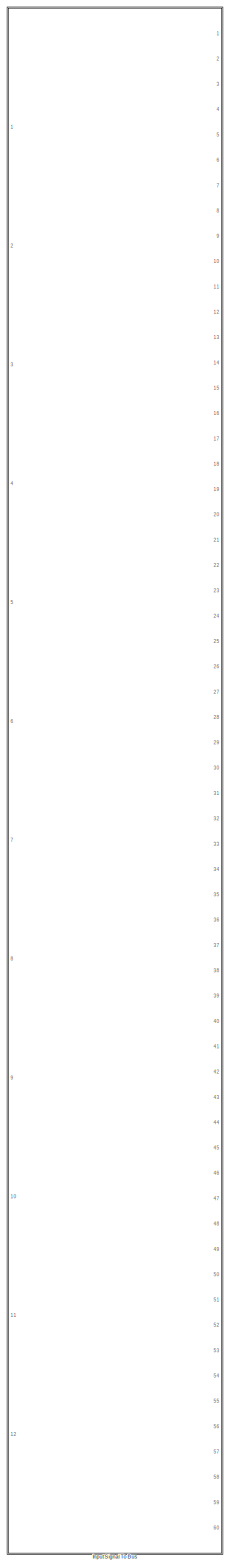
[diagram: root canvas - part 1/2, right side, full height]
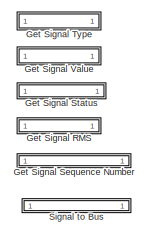
[diagram: root canvas - part 2/2, top left region]
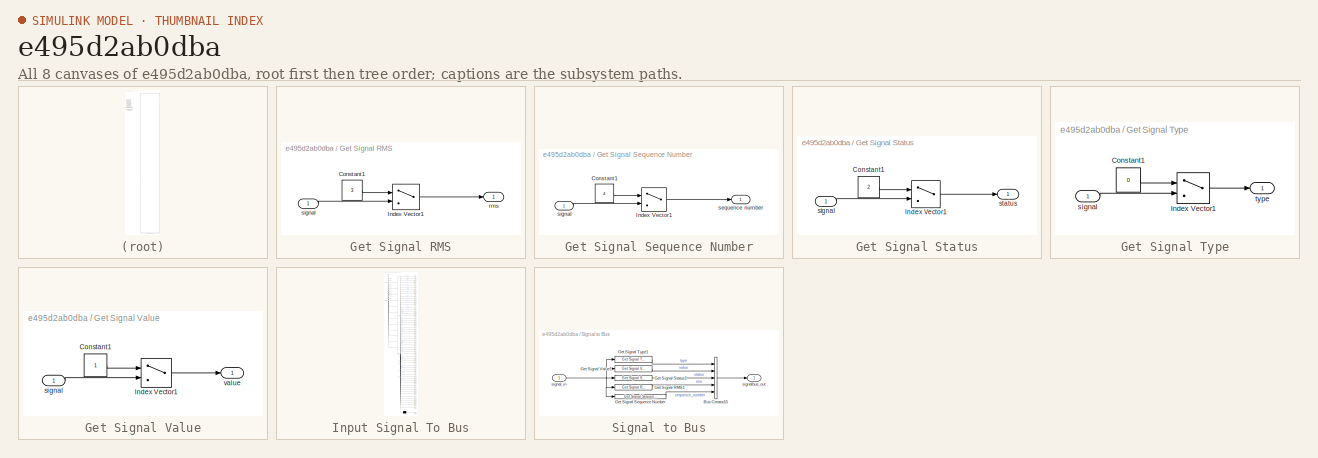
[diagram: thumbnail index - all 8 canvases of the model, root first then tree order]
MODEL slx_e495d2ab0dba
KIND library
CONFIG AbsTol = auto
CONFIG EnableMultiTasking = off
CONFIG FixedStep = auto
CONFIG MaxStep = auto
CONFIG MinStep = auto
CONFIG RelTol = 1e-3
CONFIG SampleTimeConstraint = Unconstrained
CONFIG Solver = VariableStepAuto
CONFIG SolverName = VariableStepAuto
CONFIG StartTime = 0.0
CONFIG StopTime = 10.0
BLOCK [SubSystem] Get Signal RMS
  Ports = [1, 1]
  RequestExecContextInheritance = off
  TreatAsAtomicUnit = on
BLOCK [Constant] Get Signal RMS/Constant1
  Value = 3
BLOCK [MultiPortSwitch] Get Signal RMS/Index Vector1
  DataPortOrder = Zero-based contiguous
  InputSameDT = off
  Inputs = 1
  Ports = [2, 1]
  SaturateOnIntegerOverflow = off
  zeroidx = on
BLOCK [Outport] Get Signal RMS/rms
  IconDisplay = Port number
BLOCK [Inport] Get Signal RMS/signal
  IconDisplay = Port number
BLOCK [SubSystem] Get Signal Sequence Number
  Ports = [1, 1]
  RequestExecContextInheritance = off
  TreatAsAtomicUnit = on
BLOCK [Constant] Get Signal Sequence Number/Constant1
  Value = 4
BLOCK [MultiPortSwitch] Get Signal Sequence Number/Index Vector1
  DataPortOrder = Zero-based contiguous
  InputSameDT = off
  Inputs = 1
  Ports = [2, 1]
  SaturateOnIntegerOverflow = off
  zeroidx = on
BLOCK [Outport] Get Signal Sequence Number/sequence number
  IconDisplay = Port number
BLOCK [Inport] Get Signal Sequence Number/signal
  IconDisplay = Port number
BLOCK [SubSystem] Get Signal Status
  Ports = [1, 1]
  RequestExecContextInheritance = off
  TreatAsAtomicUnit = on
BLOCK [Constant] Get Signal Status/Constant1
  Value = 2
BLOCK [MultiPortSwitch] Get Signal Status/Index Vector1
  DataPortOrder = Zero-based contiguous
  InputSameDT = off
  Inputs = 1
  Ports = [2, 1]
  SaturateOnIntegerOverflow = off
  zeroidx = on
BLOCK [Inport] Get Signal Status/signal
  IconDisplay = Port number
BLOCK [Outport] Get Signal Status/status
  IconDisplay = Port number
BLOCK [SubSystem] Get Signal Type
  Ports = [1, 1]
  RequestExecContextInheritance = off
  TreatAsAtomicUnit = on
BLOCK [Constant] Get Signal Type/Constant1
  Value = 0
BLOCK [MultiPortSwitch] Get Signal Type/Index Vector1
  DataPortOrder = Zero-based contiguous
  InputSameDT = off
  Inputs = 1
  Ports = [2, 1]
  SaturateOnIntegerOverflow = off
  zeroidx = on
BLOCK [Inport] Get Signal Type/signal
  IconDisplay = Port number
BLOCK [Outport] Get Signal Type/type
  IconDisplay = Port number
BLOCK [SubSystem] Get Signal Value
  Ports = [1, 1]
  RequestExecContextInheritance = off
  TreatAsAtomicUnit = on
BLOCK [Constant] Get Signal Value/Constant1
BLOCK [MultiPortSwitch] Get Signal Value/Index Vector1
  DataPortOrder = Zero-based contiguous
  InputSameDT = off
  Inputs = 1
  Ports = [2, 1]
  SaturateOnIntegerOverflow = off
  zeroidx = on
BLOCK [Inport] Get Signal Value/signal
  IconDisplay = Port number
BLOCK [Outport] Get Signal Value/value
  IconDisplay = Port number
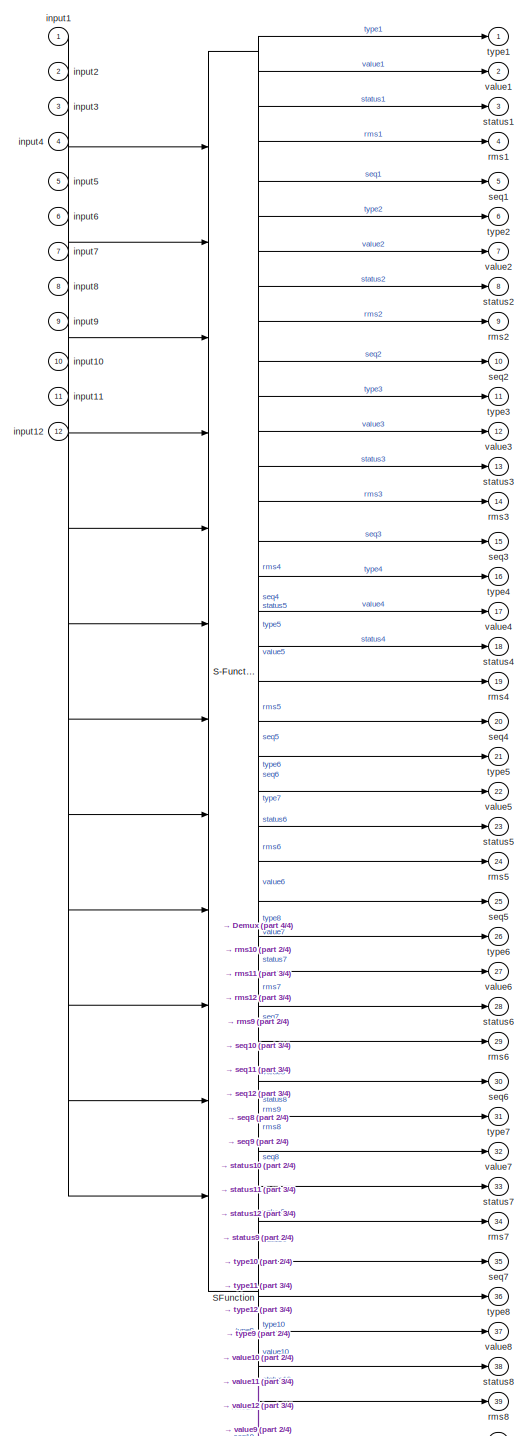
[diagram: Input Signal To Bus - part 1/4, full width, top band]
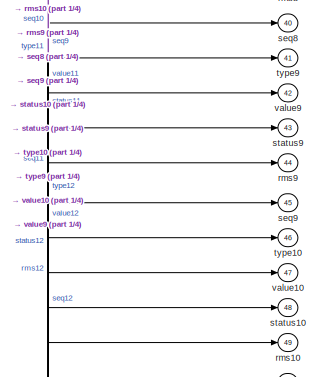
[diagram: Input Signal To Bus - part 2/4, bottom right region]
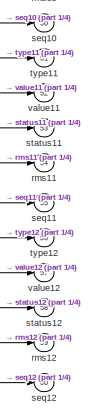
[diagram: Input Signal To Bus - part 3/4, bottom right region]
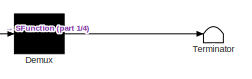
[diagram: Input Signal To Bus - part 4/4, bottom right region]
BLOCK [SubSystem] Input Signal To Bus
  ErrorFcn = Stateflow.Translate.translate
  PermitHierarchicalResolution = ExplicitOnly
  Ports = [12, 60]
  RequestExecContextInheritance = off
  SFBlockType = MATLAB Function
  TreatAsAtomicUnit = on
BLOCK [Demux] Input Signal To Bus/ Demux 
  Outputs = 1
  Ports = [1, 1]
BLOCK [S-Function] Input Signal To Bus/ SFunction 
  EnableBusSupport = off
  FunctionName = sf_sfun
  PortCounts = [12 61]
  Ports = [12, 61]
  SFcnIsStateOwnerBlock = off
  SFunctionDeploymentMode = off
  Tag = Stateflow S-Function 2
BLOCK [Terminator] Input Signal To Bus/ Terminator 
BLOCK [Inport] Input Signal To Bus/input1
  IconDisplay = Port number
BLOCK [Inport] Input Signal To Bus/input10
  IconDisplay = Port number
  Port = 10
BLOCK [Inport] Input Signal To Bus/input11
  IconDisplay = Port number
  Port = 11
BLOCK [Inport] Input Signal To Bus/input12
  IconDisplay = Port number
  Port = 12
BLOCK [Inport] Input Signal To Bus/input2
  IconDisplay = Port number
  Port = 2
BLOCK [Inport] Input Signal To Bus/input3
  IconDisplay = Port number
  Port = 3
BLOCK [Inport] Input Signal To Bus/input4
  IconDisplay = Port number
  Port = 4
BLOCK [Inport] Input Signal To Bus/input5
  IconDisplay = Port number
  Port = 5
BLOCK [Inport] Input Signal To Bus/input6
  IconDisplay = Port number
  Port = 6
BLOCK [Inport] Input Signal To Bus/input7
  IconDisplay = Port number
  Port = 7
BLOCK [Inport] Input Signal To Bus/input8
  IconDisplay = Port number
  Port = 8
BLOCK [Inport] Input Signal To Bus/input9
  IconDisplay = Port number
  Port = 9
BLOCK [Outport] Input Signal To Bus/rms1
  IconDisplay = Port number
  Port = 4
BLOCK [Outport] Input Signal To Bus/rms10
  IconDisplay = Port number
  Port = 49
BLOCK [Outport] Input Signal To Bus/rms11
  IconDisplay = Port number
  Port = 54
BLOCK [Outport] Input Signal To Bus/rms12
  IconDisplay = Port number
  Port = 59
BLOCK [Outport] Input Signal To Bus/rms2
  IconDisplay = Port number
  Port = 9
BLOCK [Outport] Input Signal To Bus/rms3
  IconDisplay = Port number
  Port = 14
BLOCK [Outport] Input Signal To Bus/rms4
  IconDisplay = Port number
  Port = 19
BLOCK [Outport] Input Signal To Bus/rms5
  IconDisplay = Port number
  Port = 24
BLOCK [Outport] Input Signal To Bus/rms6
  IconDisplay = Port number
  Port = 29
BLOCK [Outport] Input Signal To Bus/rms7
  IconDisplay = Port number
  Port = 34
BLOCK [Outport] Input Signal To Bus/rms8
  IconDisplay = Port number
  Port = 39
BLOCK [Outport] Input Signal To Bus/rms9
  IconDisplay = Port number
  Port = 44
BLOCK [Outport] Input Signal To Bus/seq1
  IconDisplay = Port number
  Port = 5
BLOCK [Outport] Input Signal To Bus/seq10
  IconDisplay = Port number
  Port = 50
BLOCK [Outport] Input Signal To Bus/seq11
  IconDisplay = Port number
  Port = 55
BLOCK [Outport] Input Signal To Bus/seq12
  IconDisplay = Port number
  Port = 60
BLOCK [Outport] Input Signal To Bus/seq2
  IconDisplay = Port number
  Port = 10
BLOCK [Outport] Input Signal To Bus/seq3
  IconDisplay = Port number
  Port = 15
BLOCK [Outport] Input Signal To Bus/seq4
  IconDisplay = Port number
  Port = 20
BLOCK [Outport] Input Signal To Bus/seq5
  IconDisplay = Port number
  Port = 25
BLOCK [Outport] Input Signal To Bus/seq6
  IconDisplay = Port number
  Port = 30
BLOCK [Outport] Input Signal To Bus/seq7
  IconDisplay = Port number
  Port = 35
BLOCK [Outport] Input Signal To Bus/seq8
  IconDisplay = Port number
  Port = 40
BLOCK [Outport] Input Signal To Bus/seq9
  IconDisplay = Port number
  Port = 45
BLOCK [Outport] Input Signal To Bus/status1
  IconDisplay = Port number
  Port = 3
BLOCK [Outport] Input Signal To Bus/status10
  IconDisplay = Port number
  Port = 48
BLOCK [Outport] Input Signal To Bus/status11
  IconDisplay = Port number
  Port = 53
BLOCK [Outport] Input Signal To Bus/status12
  IconDisplay = Port number
  Port = 58
BLOCK [Outport] Input Signal To Bus/status2
  IconDisplay = Port number
  Port = 8
BLOCK [Outport] Input Signal To Bus/status3
  IconDisplay = Port number
  Port = 13
BLOCK [Outport] Input Signal To Bus/status4
  IconDisplay = Port number
  Port = 18
BLOCK [Outport] Input Signal To Bus/status5
  IconDisplay = Port number
  Port = 23
BLOCK [Outport] Input Signal To Bus/status6
  IconDisplay = Port number
  Port = 28
BLOCK [Outport] Input Signal To Bus/status7
  IconDisplay = Port number
  Port = 33
BLOCK [Outport] Input Signal To Bus/status8
  IconDisplay = Port number
  Port = 38
BLOCK [Outport] Input Signal To Bus/status9
  IconDisplay = Port number
  Port = 43
BLOCK [Outport] Input Signal To Bus/type1
  IconDisplay = Port number
BLOCK [Outport] Input Signal To Bus/type10
  IconDisplay = Port number
  Port = 46
BLOCK [Outport] Input Signal To Bus/type11
  IconDisplay = Port number
  Port = 51
BLOCK [Outport] Input Signal To Bus/type12
  IconDisplay = Port number
  Port = 56
BLOCK [Outport] Input Signal To Bus/type2
  IconDisplay = Port number
  Port = 6
BLOCK [Outport] Input Signal To Bus/type3
  IconDisplay = Port number
  Port = 11
BLOCK [Outport] Input Signal To Bus/type4
  IconDisplay = Port number
  Port = 16
BLOCK [Outport] Input Signal To Bus/type5
  IconDisplay = Port number
  Port = 21
BLOCK [Outport] Input Signal To Bus/type6
  IconDisplay = Port number
  Port = 26
BLOCK [Outport] Input Signal To Bus/type7
  IconDisplay = Port number
  Port = 31
BLOCK [Outport] Input Signal To Bus/type8
  IconDisplay = Port number
  Port = 36
BLOCK [Outport] Input Signal To Bus/type9
  IconDisplay = Port number
  Port = 41
BLOCK [Outport] Input Signal To Bus/value1
  IconDisplay = Port number
  Port = 2
BLOCK [Outport] Input Signal To Bus/value10
  IconDisplay = Port number
  Port = 47
BLOCK [Outport] Input Signal To Bus/value11
  IconDisplay = Port number
  Port = 52
BLOCK [Outport] Input Signal To Bus/value12
  IconDisplay = Port number
  Port = 57
BLOCK [Outport] Input Signal To Bus/value2
  IconDisplay = Port number
  Port = 7
BLOCK [Outport] Input Signal To Bus/value3
  IconDisplay = Port number
  Port = 12
BLOCK [Outport] Input Signal To Bus/value4
  IconDisplay = Port number
  Port = 17
BLOCK [Outport] Input Signal To Bus/value5
  IconDisplay = Port number
  Port = 22
BLOCK [Outport] Input Signal To Bus/value6
  IconDisplay = Port number
  Port = 27
BLOCK [Outport] Input Signal To Bus/value7
  IconDisplay = Port number
  Port = 32
BLOCK [Outport] Input Signal To Bus/value8
  IconDisplay = Port number
  Port = 37
BLOCK [Outport] Input Signal To Bus/value9
  IconDisplay = Port number
  Port = 42
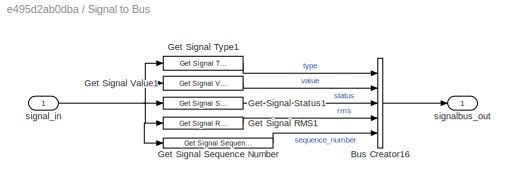
BLOCK [SubSystem] Signal to Bus
  Ports = [1, 1]
  RequestExecContextInheritance = off
  TreatAsAtomicUnit = on
BLOCK [BusCreator] Signal to Bus/Bus Creator16
  DisplayOption = bar
  InheritFromInputs = on
  Inputs = 5
  Ports = [5, 1]
BLOCK [Reference] Signal to Bus/Get Signal RMS1  REF=$bdroot/Get Signal RMS
  Ports = [1, 1]
  SourceBlock = $bdroot/Get Signal RMS
  SourceType = SubSystem
BLOCK [Reference] Signal to Bus/Get Signal Sequence Number  REF=$bdroot/Get Signal Sequence Number
  Ports = [1, 1]
  SourceBlock = $bdroot/Get Signal Sequence Number
  SourceType = SubSystem
BLOCK [Reference] Signal to Bus/Get Signal Status1  REF=$bdroot/Get Signal Status
  Ports = [1, 1]
  SourceBlock = $bdroot/Get Signal Status
  SourceType = SubSystem
BLOCK [Reference] Signal to Bus/Get Signal Type1  REF=$bdroot/Get Signal Type
  Ports = [1, 1]
  SourceBlock = $bdroot/Get Signal Type
  SourceType = SubSystem
BLOCK [Reference] Signal to Bus/Get Signal Value1  REF=$bdroot/Get Signal Value
  Ports = [1, 1]
  SourceBlock = $bdroot/Get Signal Value
  SourceType = SubSystem
BLOCK [Inport] Signal to Bus/signal_in
  IconDisplay = Port number
BLOCK [Outport] Signal to Bus/signalbus_out
  IconDisplay = Port number
LINE Get Signal RMS/Constant1:1 -> Get Signal RMS/Index Vector1:1
LINE Get Signal RMS/Index Vector1:1 -> Get Signal RMS/rms:1
LINE Get Signal RMS/signal:1 -> Get Signal RMS/Index Vector1:2
LINE Get Signal Sequence Number/Constant1:1 -> Get Signal Sequence Number/Index Vector1:1
LINE Get Signal Sequence Number/Index Vector1:1 -> Get Signal Sequence Number/sequence number:1
LINE Get Signal Sequence Number/signal:1 -> Get Signal Sequence Number/Index Vector1:2
LINE Get Signal Status/Constant1:1 -> Get Signal Status/Index Vector1:1
LINE Get Signal Status/Index Vector1:1 -> Get Signal Status/status:1
LINE Get Signal Status/signal:1 -> Get Signal Status/Index Vector1:2
LINE Get Signal Type/Constant1:1 -> Get Signal Type/Index Vector1:1
LINE Get Signal Type/Index Vector1:1 -> Get Signal Type/type:1
LINE Get Signal Type/signal:1 -> Get Signal Type/Index Vector1:2
LINE Get Signal Value/Constant1:1 -> Get Signal Value/Index Vector1:1
LINE Get Signal Value/Index Vector1:1 -> Get Signal Value/value:1
LINE Get Signal Value/signal:1 -> Get Signal Value/Index Vector1:2
LINE Signal to Bus/Bus Creator16:1 -> Signal to Bus/signalbus_out:1
LINE Signal to Bus/Get Signal RMS1:1 -> Signal to Bus/Bus Creator16:4
LINE Signal to Bus/Get Signal Sequence Number:1 -> Signal to Bus/Bus Creator16:5
LINE Signal to Bus/Get Signal Status1:1 -> Signal to Bus/Bus Creator16:3
LINE Signal to Bus/Get Signal Type1:1 -> Signal to Bus/Bus Creator16:1
LINE Signal to Bus/Get Signal Value1:1 -> Signal to Bus/Bus Creator16:2
NET Signal to Bus/signal_in:1 -> Signal to Bus/Get Signal RMS1:1, Signal to Bus/Get Signal Sequence Number:1, Signal to Bus/Get Signal Status1:1, Signal to Bus/Get Signal Type1:1, Signal to Bus/Get Signal Value1:1
note: NET lines group one-source signal fan-out (src -> all destinations, sorted); 1:1 wires keep LINE
CHART Input Signal To Bus states=1 transitions=1
  STATE_LABEL 'eML_blk_kernel()'
  STATE_LABEL 'SCRIPT:\nfunction [type1,value1,status1,rms1,seq1, ... \n            type2,value2,status2,rms2,seq2, ... \n            type3,value3,status3,rms3,seq3, ... \n            type4,value4,status4,rms4,seq4, ... \n            type5,value5,status5,rms5,seq5, ... \n            type6,value6,status6,rms6,seq6, ... \n            type7,value7,status7,rms7,seq7, ... \n            type8,value8,status8,rms8,seq8, ... \n  ...<+2310ch>'
